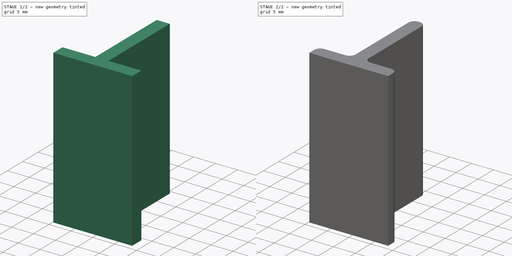
[diagram: build sequence overview — one tinted view per stage of 2, left to right]
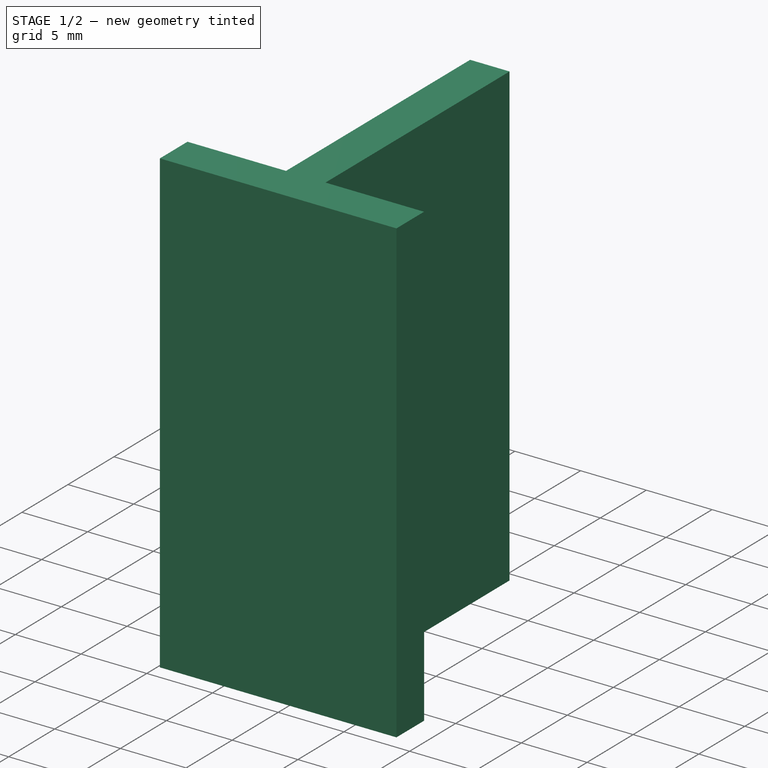
[diagram: stage 1 of 2 — iso view after this stage's code; geometry added in this stage tinted green]
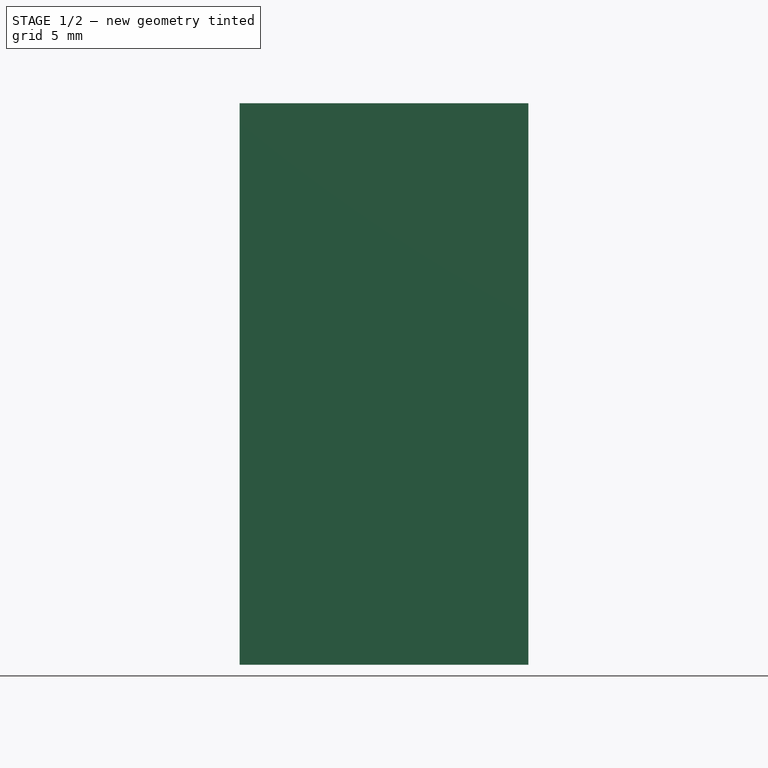
[diagram: stage 1 of 2 — front view after this stage's code; geometry added in this stage tinted green]
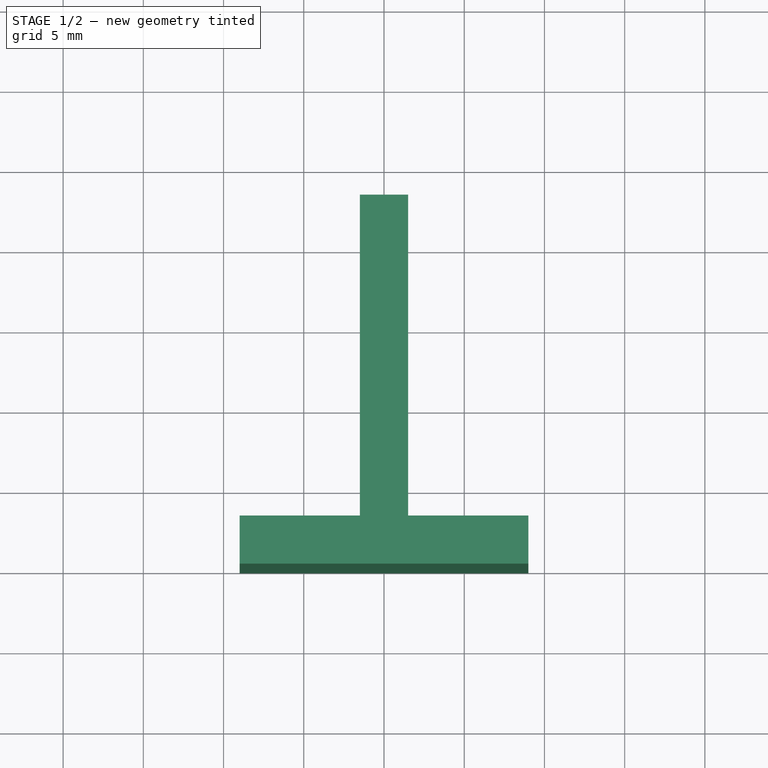
[diagram: stage 1 of 2 — top view after this stage's code; geometry added in this stage tinted green]
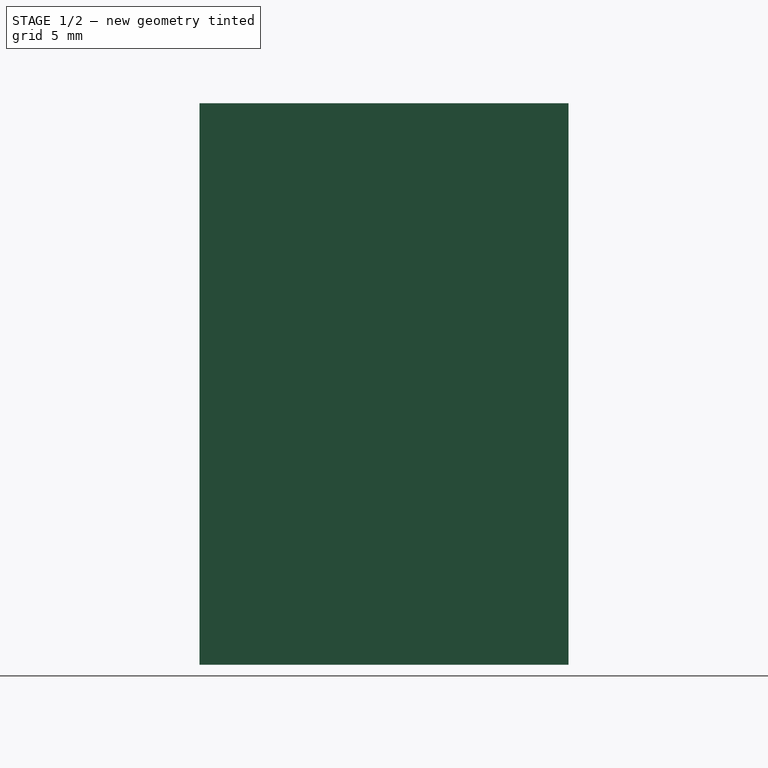
[diagram: stage 1 of 2 — right view after this stage's code; geometry added in this stage tinted green]
FCSTD DOCUMENT  (FreeCAD 0.20R29603 (Git))
Label: sliding door handle
License: All rights reserved
LicenseURL: http://en.wikipedia.org/wiki/All_rights_reserved
objects: Sketcher::SketchObject×1, PartDesign::Pad×1, PartDesign::Fillet×1, PartDesign::Body×1
note: 6 computed .brp shape members not serialized (recipe doc carries the construction recipe); baked Part::Feature solids carry a one-line shape summary decoded from their .brp

FEATURE [Sketcher::SketchObject] Sketch
  FullyConstrained = true
  MapMode = 5
  Support = -> [XY_Plane]
  sketch-geometry (8):
    g0: LineSegment StartX=-9 StartY=0 StartZ=0 EndX=9 EndY=0 EndZ=0
    g1: LineSegment StartX=9 StartY=0 StartZ=0 EndX=9 EndY=3 EndZ=0
    g2: LineSegment StartX=9 StartY=3 StartZ=0 EndX=1.5 EndY=3 EndZ=0
    g3: LineSegment StartX=1.5 StartY=3 StartZ=0 EndX=1.5 EndY=23 EndZ=0
    g4: LineSegment StartX=1.5 StartY=23 StartZ=0 EndX=-1.5 EndY=23 EndZ=0
    g5: LineSegment StartX=-1.5 StartY=23 StartZ=0 EndX=-1.5 EndY=3 EndZ=0
    g6: LineSegment StartX=-1.5 StartY=3 StartZ=0 EndX=-9 EndY=3 EndZ=0
    g7: LineSegment StartX=-9 StartY=3 StartZ=0 EndX=-9 EndY=0 EndZ=0
  constraints (21):
    c: PointOnObject(g0,g-1)
    c: Coincident(g0,g1)
    c: Vertical(g1)
    c: Coincident(g1,g2)
    c: Horizontal(g2)
    c: Coincident(g2,g3)
    c: Vertical(g3)
    c: Coincident(g3,g4)
    c: Coincident(g4,g5)
    c: Coincident(g5,g6)
    c: Horizontal(g6)
    c: Coincident(g6,g7)
    c: Coincident(g7,g0)
    c: Vertical(g7)
    c: Symmetric(g0,g0,g-1)
    c: Symmetric(g4,g3,g-2)
    c: Symmetric(g5,g2,g-2)
    c: DistanceY(g7,g7) = 3
    c: DistanceX(g0,g0) = 18
    c: DistanceX(g4,g3) = 3
    c: DistanceY(g5,g5) = 20
FEATURE [PartDesign::Pad] Pad
  Direction = (0,0,1)
  Length = 35
  Length2 = 10
  Profile = -> Sketch
  ReferenceAxis = -> Sketch [N_Axis]
  Type = 0
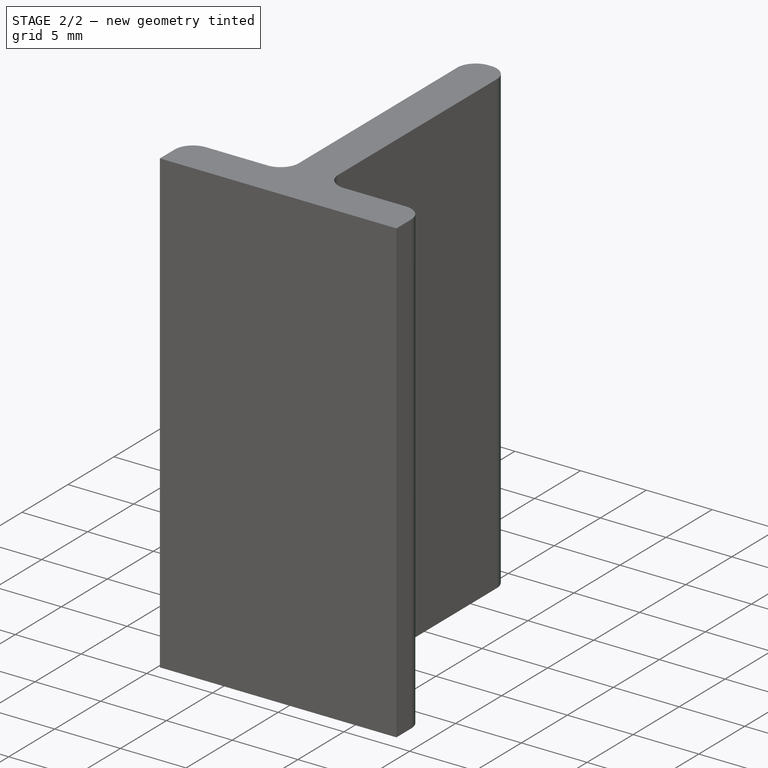
[diagram: stage 2 of 2 — iso view after this stage's code; geometry added in this stage tinted green]
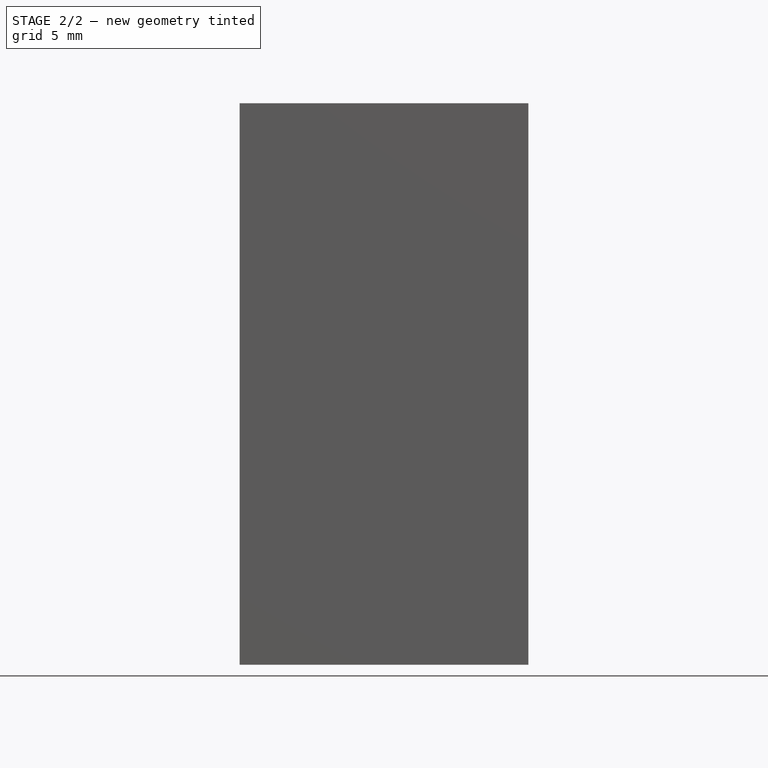
[diagram: stage 2 of 2 — front view after this stage's code; geometry added in this stage tinted green]
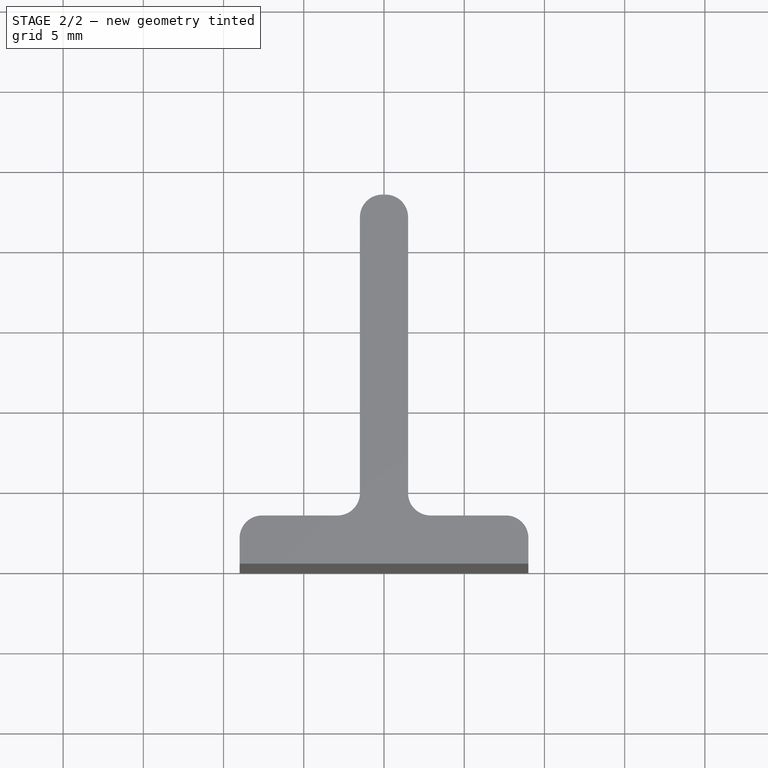
[diagram: stage 2 of 2 — top view after this stage's code; geometry added in this stage tinted green]
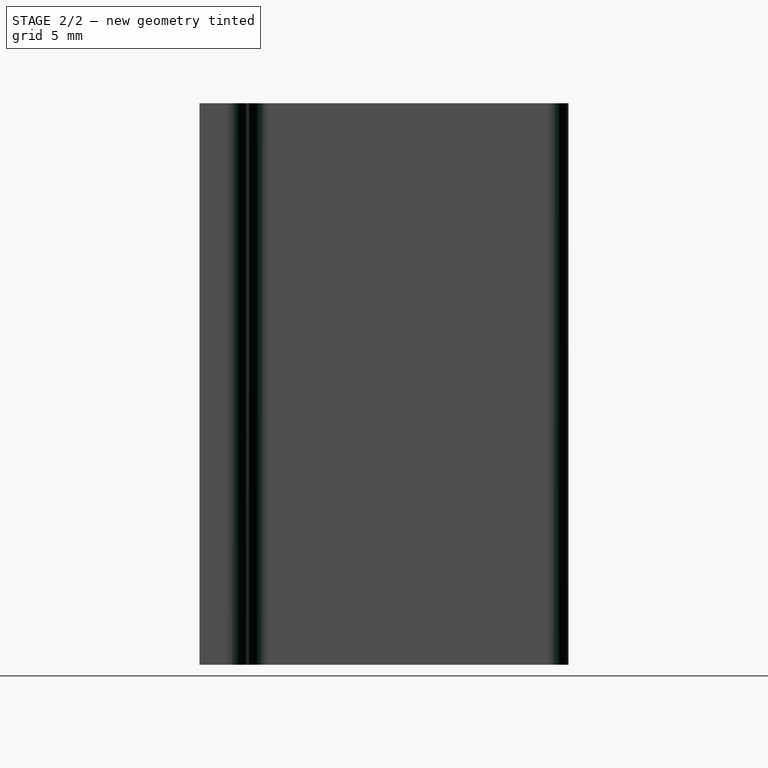
[diagram: stage 2 of 2 — right view after this stage's code; geometry added in this stage tinted green]
FEATURE [PartDesign::Fillet] Fillet
  Base = -> Pad [Edge5,Edge20,Edge8,Edge17,Edge11,Edge14]
  BaseFeature = -> Pad
  Radius = 1.4
  SupportTransform = false
  UseAllEdges = false
FEATURE [PartDesign::Body] Body
  Group = -> [Sketch,Pad,Fillet]
  Origin = -> Origin
  Tip = -> Fillet
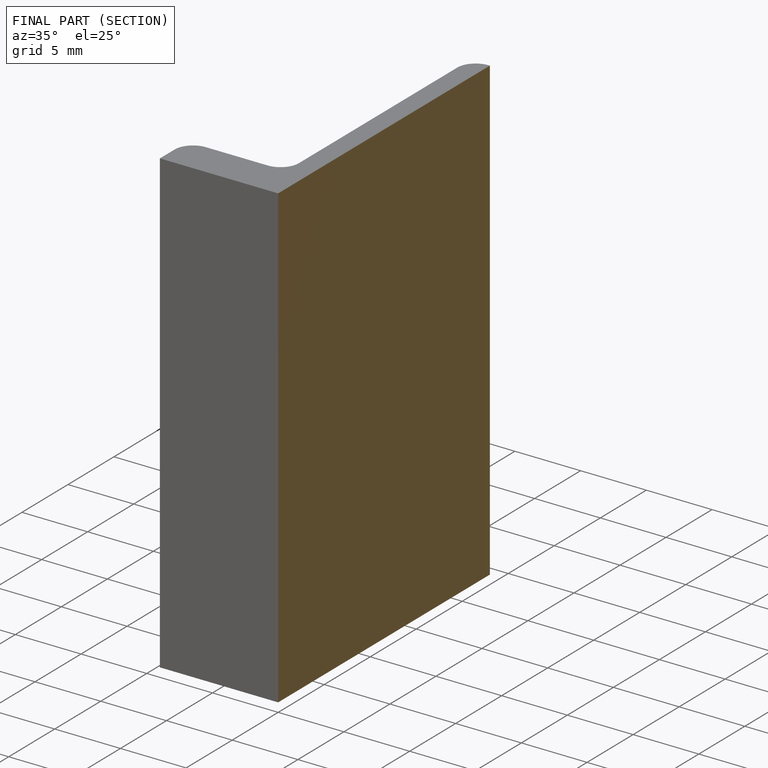
[diagram: finished part — half-section view (interior)]
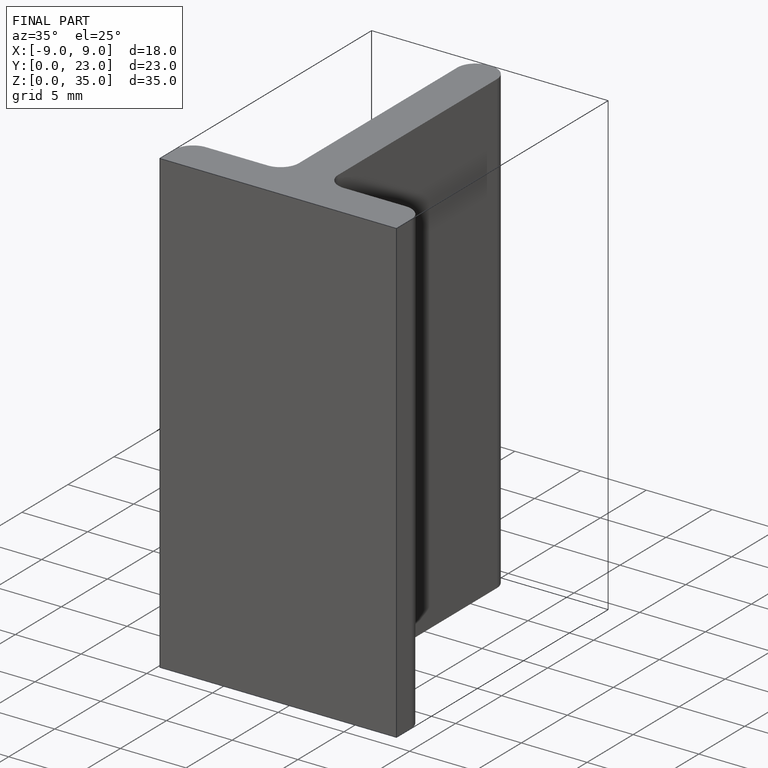
[diagram: finished part — iso view with bounding-box wireframe]
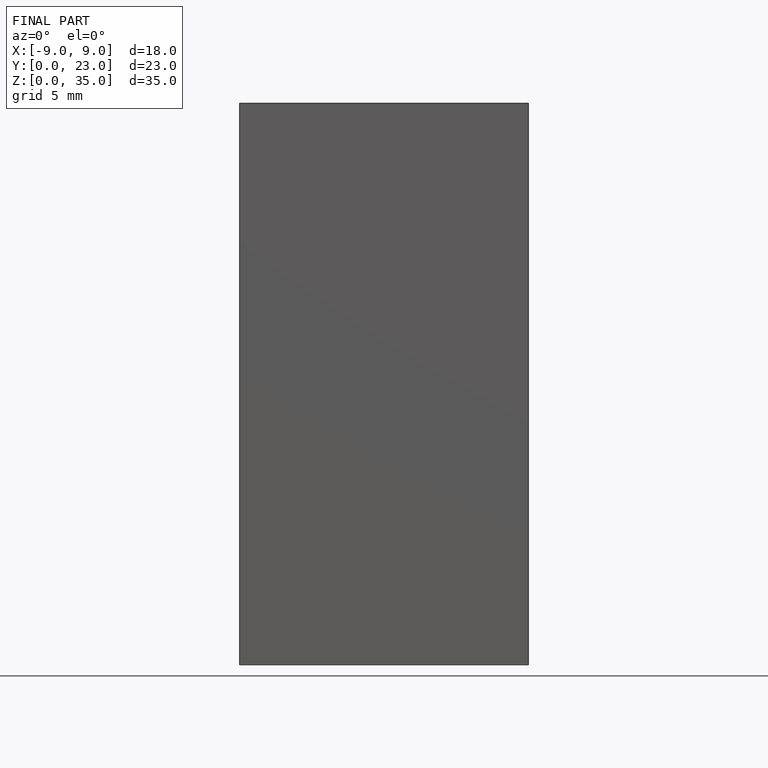
[diagram: finished part — front view with bounding-box wireframe]
